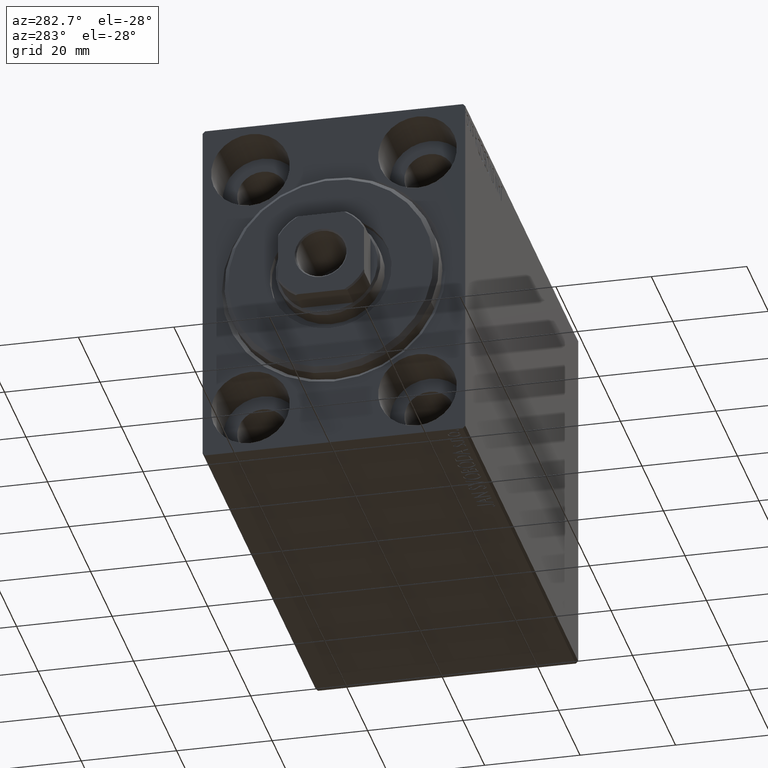
[diagram: clean part render]
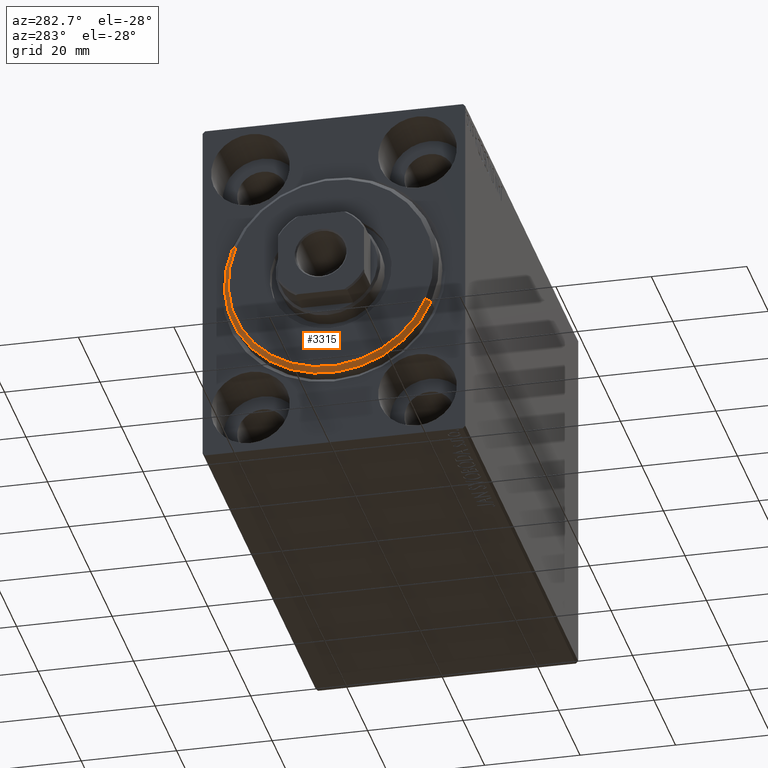
[diagram: same view with one face highlighted and labeled with its STEP entity id]
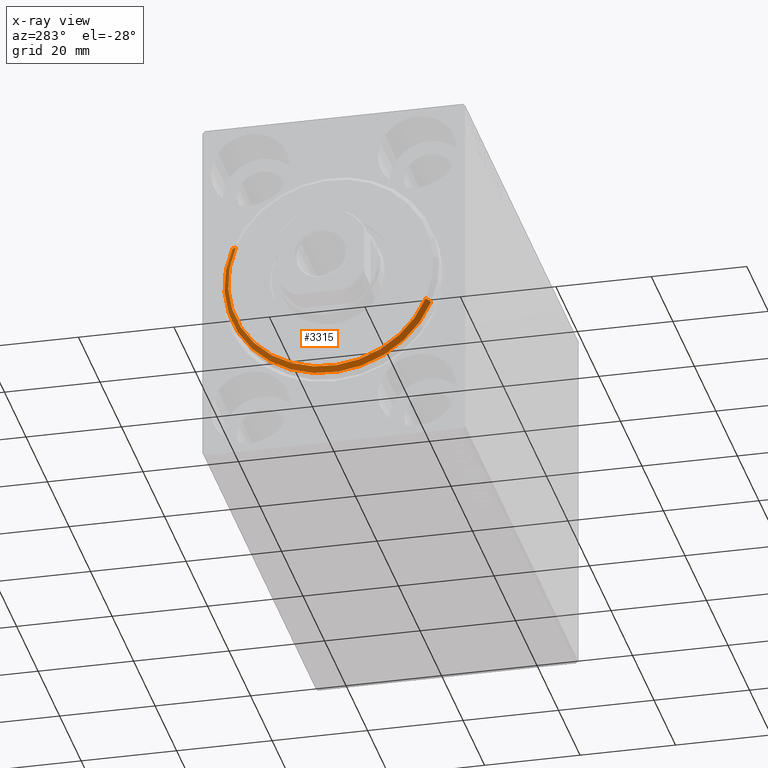
[diagram: x-ray of the same camera — body ghosted, the highlighted face saturated]
A machine part, auxiliary view. The second image highlights one B-rep face of the part: STEP entity #3315.
The next image is the same camera in x-ray: the body ghosted, the highlighted face saturated — about 0% of this face is hidden behind the body in this view.
In plain terms, the highlighted conical surface has half-angle 45 deg.
Its self-contained STEP definition (entity closure, byte-faithful):
#1759 = VECTOR ( 'NONE', #34517, 1000.000000000000000 ) ;
#2704 = VECTOR ( 'NONE', #20921, 1000.000000000000000 ) ;
#3315 = ADVANCED_FACE ( 'NONE', ( #19188 ), #17106, .T. ) ;
#5179 = AXIS2_PLACEMENT_3D ( 'NONE', #23485, #36279, #29448 ) ;
#5519 = DIRECTION ( 'NONE',  ( -1.000000000000000000, 0.000000000000000000, 0.000000000000000000 ) ) ;
#5771 = EDGE_CURVE ( 'NONE', #40504, #32348, #39681, .T. ) ;
#7074 = ORIENTED_EDGE ( 'NONE', *, *, #28131, .F. ) ;
#7247 = LINE ( 'NONE', #20706, #2704 ) ;
#7830 = DIRECTION ( 'NONE',  ( -1.000000000000000000, 0.000000000000000000, 0.000000000000000000 ) ) ;
#8565 = EDGE_CURVE ( 'NONE', #20533, #37061, #24949, .T. ) ;
#8690 = CARTESIAN_POINT ( 'NONE',  ( 1.999999999999999112, 0.000000000000000000, 22.50000000000000355 ) ) ;
#9586 = EDGE_CURVE ( 'NONE', #40504, #37061, #27476, .T. ) ;
#11351 = CARTESIAN_POINT ( 'NONE',  ( 3.000000000000000000, 2.632990618166810024E-15, -21.50000000000000355 ) ) ;
#15416 = DIRECTION ( 'NONE',  ( 0.000000000000000000, 0.000000000000000000, 1.000000000000000000 ) ) ;
#16418 = AXIS2_PLACEMENT_3D ( 'NONE', #35708, #5519, #15416 ) ;
#17106 = CONICAL_SURFACE ( 'NONE', #16418, 21.50000000000000355, 0.7853981633974466137 ) ;
#17137 = ORIENTED_EDGE ( 'NONE', *, *, #5771, .F. ) ;
#17981 = DIRECTION ( 'NONE',  ( 0.000000000000000000, 0.000000000000000000, -1.000000000000000000 ) ) ;
#18738 = ORIENTED_EDGE ( 'NONE', *, *, #8565, .F. ) ;
#19188 = FACE_OUTER_BOUND ( 'NONE', #43160, .T. ) ;
#19602 = CARTESIAN_POINT ( 'NONE',  ( 3.000000000000000000, 2.694222958124177598E-15, -21.50000000000000355 ) ) ;
#20533 = VERTEX_POINT ( 'NONE', #8690 ) ;
#20706 = CARTESIAN_POINT ( 'NONE',  ( 3.000000000000000000, 0.000000000000000000, 21.50000000000000355 ) ) ;
#20921 = DIRECTION ( 'NONE',  ( -0.7071067811865487940, 0.000000000000000000, 0.7071067811865463515 ) ) ;
#23485 = CARTESIAN_POINT ( 'NONE',  ( 3.000000000000000000, 0.000000000000000000, 0.000000000000000000 ) ) ;
#23535 = AXIS2_PLACEMENT_3D ( 'NONE', #38044, #7830, #17981 ) ;
#24306 = CARTESIAN_POINT ( 'NONE',  ( 1.999999999999999112, 2.755455298081545172E-15, -22.50000000000000355 ) ) ;
#24949 = CIRCLE ( 'NONE', #23535, 22.50000000000000355 ) ;
#27476 = LINE ( 'NONE', #11351, #1759 ) ;
#28131 = EDGE_CURVE ( 'NONE', #32348, #20533, #7247, .T. ) ;
#28448 = ORIENTED_EDGE ( 'NONE', *, *, #9586, .T. ) ;
#29448 = DIRECTION ( 'NONE',  ( 0.000000000000000000, 0.000000000000000000, -1.000000000000000000 ) ) ;
#32348 = VERTEX_POINT ( 'NONE', #41681 ) ;
#34517 = DIRECTION ( 'NONE',  ( -0.7071067811865487940, 8.659560562354919300E-17, -0.7071067811865463515 ) ) ;
#35708 = CARTESIAN_POINT ( 'NONE',  ( 3.000000000000000000, 0.000000000000000000, 0.000000000000000000 ) ) ;
#36279 = DIRECTION ( 'NONE',  ( 1.000000000000000000, -0.000000000000000000, 0.000000000000000000 ) ) ;
#37061 = VERTEX_POINT ( 'NONE', #24306 ) ;
#38044 = CARTESIAN_POINT ( 'NONE',  ( 1.999999999999999112, 0.000000000000000000, 0.000000000000000000 ) ) ;
#39681 = CIRCLE ( 'NONE', #5179, 21.50000000000000355 ) ;
#40504 = VERTEX_POINT ( 'NONE', #19602 ) ;
#41681 = CARTESIAN_POINT ( 'NONE',  ( 3.000000000000000000, 0.000000000000000000, 21.50000000000000355 ) ) ;
#43160 = EDGE_LOOP ( 'NONE', ( #17137, #28448, #18738, #7074 ) ) ;